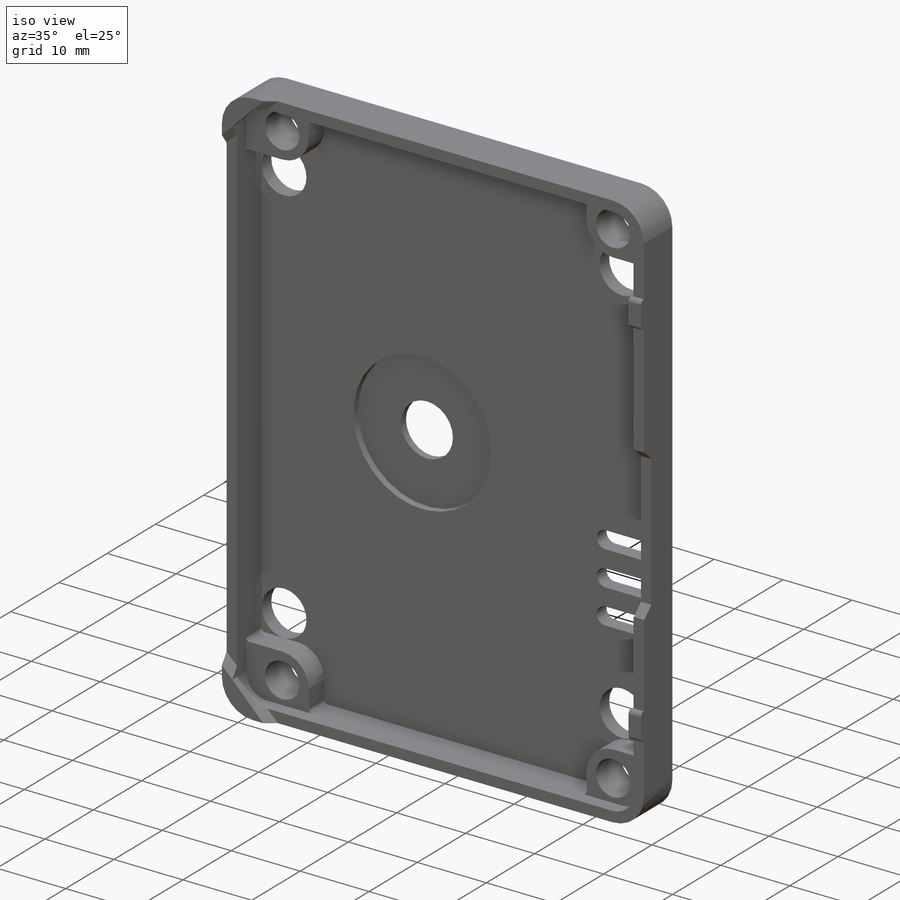
[diagram: iso view]
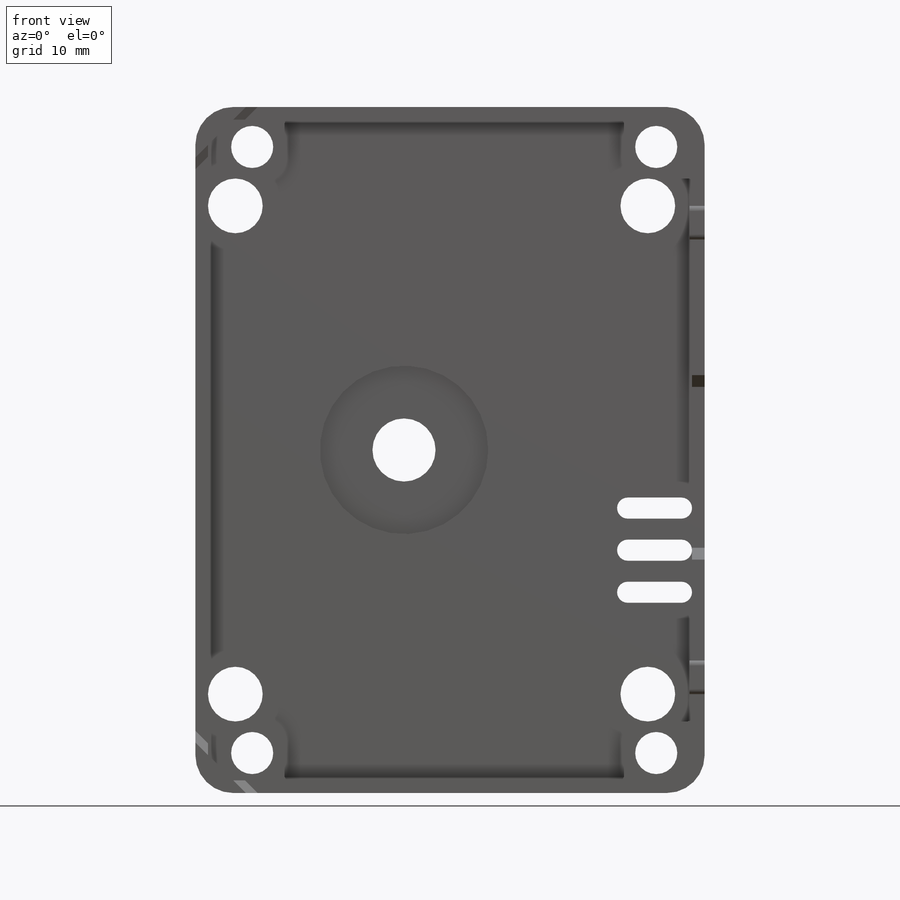
[diagram: front view]
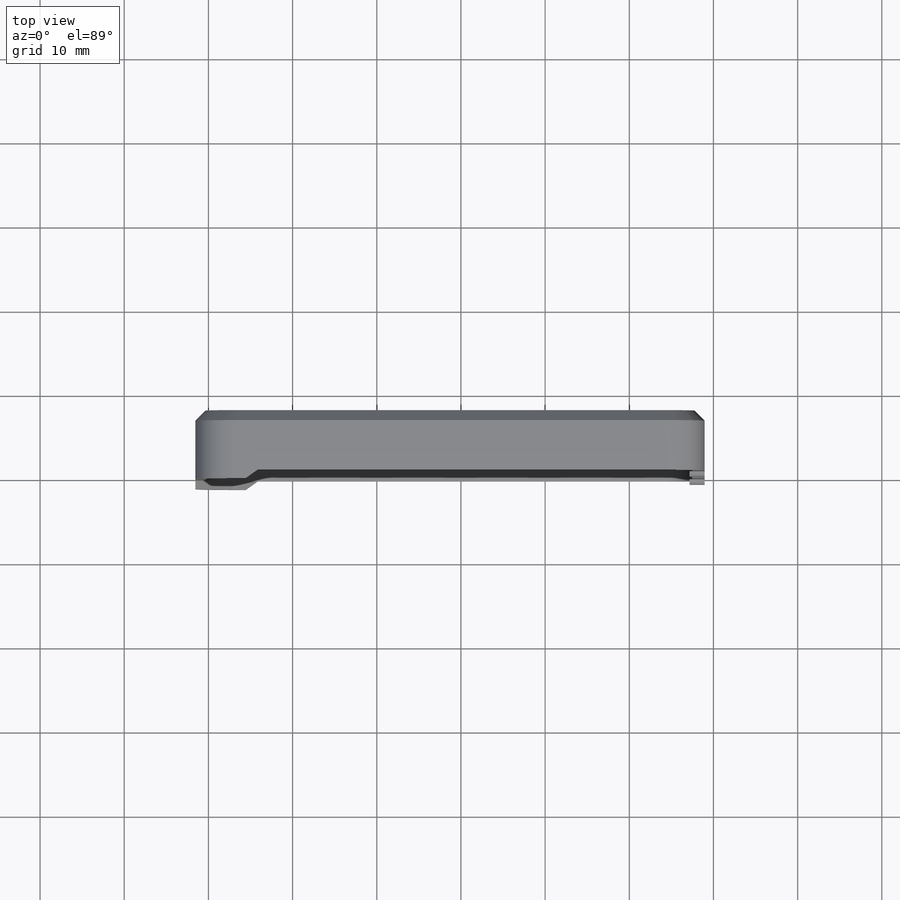
[diagram: top view]
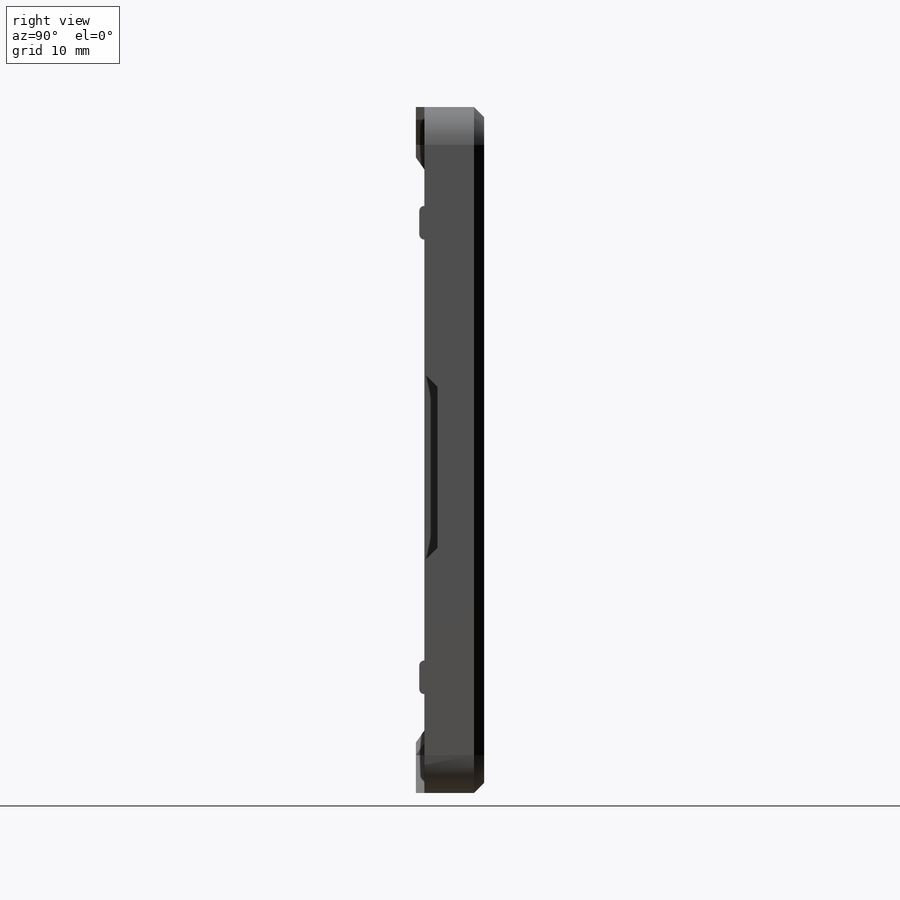
[diagram: right view]
SOLIDWORKS PART (.sldprt)
format: sldprt  version: not decoded by parser v0  size: 870,912 bytes
history: native  units: mm
features: sketch x14, cut_extrude x8, extrude x6, plane x4, chamfer x4, fillet x3, pattern_linear x2, material x1, mirror x1 (+10 scaffold rows collapsed)
feature tree (53):
  scaffold x10  (default folders/planes/origin — collapsed)
  material  "材质 <未指定>"
  plane  "前视基准面"
  plane  "上视基准面"
  plane  "右视基准面"
  sketch  "Sketch1"  dims[c1.D5=3.0mm c1.D1=0.25mm c1.D2=~48.999999mm c2.D2=~179.985536deg c3.D2=78.5mm c3.D3=57.5mm c3.D4=78.3mm c4.D4=~179.989875deg c5.D4=0.25mm c5.D6=1.5mm]
  extrude  "Extrude1"  Depth=4.95mm
  sketch  "Sketch2"  dims[D1=0.0mm]
  extrude  "Extrude2"  Depth=2mm
  sketch  "Sketch3"  dims[D1=5.0mm]
  cut_extrude  "Cut-Extrude1"  [1 undecoded]
  sketch  "Sketch4"  dims[D1=5.3mm]
  cut_extrude  "Cut-Extrude2"  [1 undecoded]
  sketch  "Sketch5"  dims[D1=~10.198176mm]
  cut_extrude  "Cut-Extrude3"  Depth=1.4mm
  chamfer  "Chamfer1"  Distance=1.4mm Angle=45deg
  sketch  "Sketch6"  dims[D3=1.35mm D4=1.35mm D5=~1.350002mm D1=0.0mm D2=0.0mm]
  extrude  "Extrude3"  Depth=1.7mm
  fillet  "Fillet1"  Radius=3.85mm
  fillet  "Fillet2"  Radius=0.5mm
  sketch  "Sketch7"  dims[D1=2.5mm]
  cut_extrude  "Cut-Extrude4"  [1 undecoded]
  pattern_linear  "LPattern1"  Count1=2 Count2=1 Spacing1=5mm Spacing2=10mm
  pattern_linear  "LPattern2"  Count1=2 Count2=1 Spacing1=5mm Spacing2=10mm
  sketch  "Sketch8"  dims[D1=0.0mm]
  extrude  "Extrude4"  Depth=0.15mm
  sketch  "Sketch9"  dims[D2=0.5mm D1=0.0mm]
  extrude  "Extrude5"  Depth=1mm
  chamfer  "Chamfer2"  Distance=1mm Angle=45deg
  sketch  "Sketch10"  dims[D1=0.3mm D2=4.0mm]
  extrude  "Extrude6"  Depth=0.6mm
  fillet  "Fillet3"  Radius=0.6mm
  plane  "Plane1"
  mirror  "Mirror1"
  sketch  "Sketch11"  dims[D1=1.9mm]
  cut_extrude  "Cut-Extrude5"  Depth=0.3mm
  chamfer  "Chamfer4"  Distance=1.2mm Angle=45deg
  sketch  "Sketch12"  dims[D1=7.5mm]
  cut_extrude  "Cut-Extrude6"  [1 undecoded]
  sketch  "Sketch13"  dims[D1=20.0mm]
  cut_extrude  "Extrude7"  Depth=1mm
  sketch  "Sketch14"  dims[D1=10.2mm D2=~27.732039mm]
  cut_extrude  "Cut-Extrude7"  [1 undecoded]
  chamfer  "Chamfer5"  Distance=1.4mm Angle=45deg
decode coverage: 32 of 38 modeling features carry decoded parameters
note: ~ marks probable driven/reference dimensions
note: 5 parameter values undecoded
summary: no parameter record found for 5 features
note: suppression state not decoded; provenance and decode notes live in map.json
